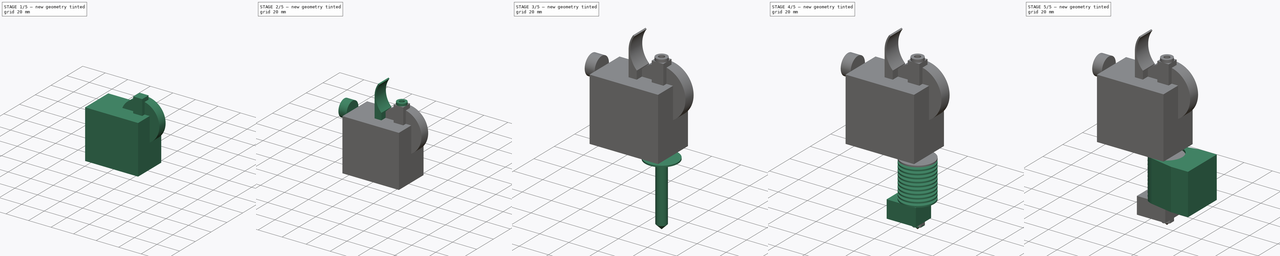
[diagram: build sequence overview — one tinted view per stage of 5, left to right]
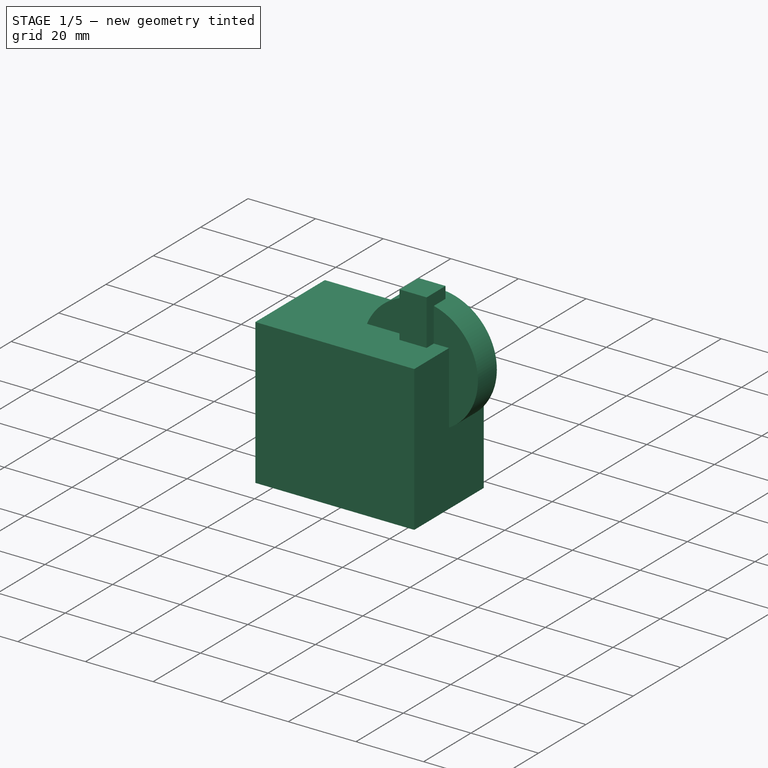
[diagram: stage 1 of 5 — iso view after this stage's code; geometry added in this stage tinted green]
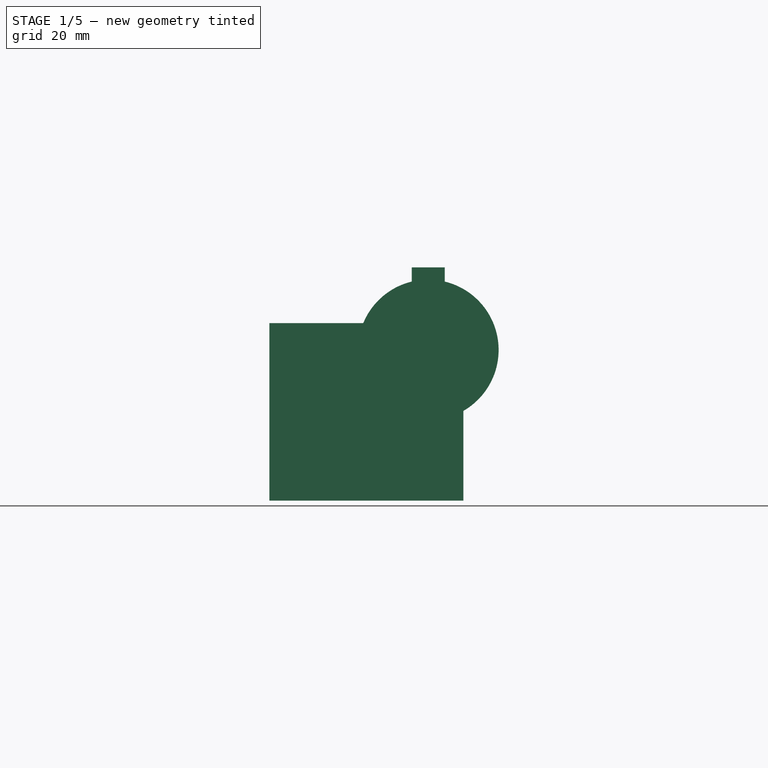
[diagram: stage 1 of 5 — front view after this stage's code; geometry added in this stage tinted green]
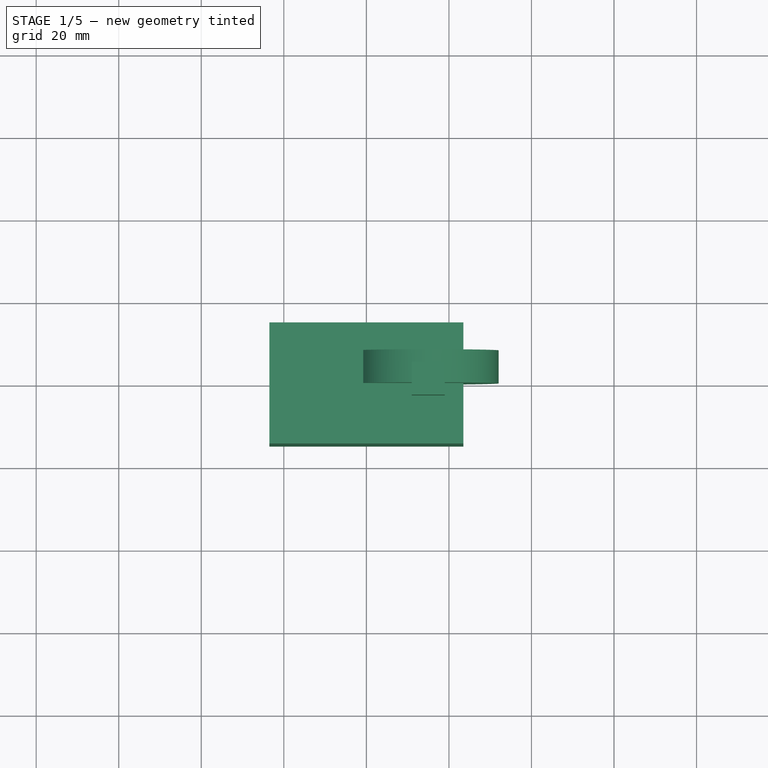
[diagram: stage 1 of 5 — top view after this stage's code; geometry added in this stage tinted green]
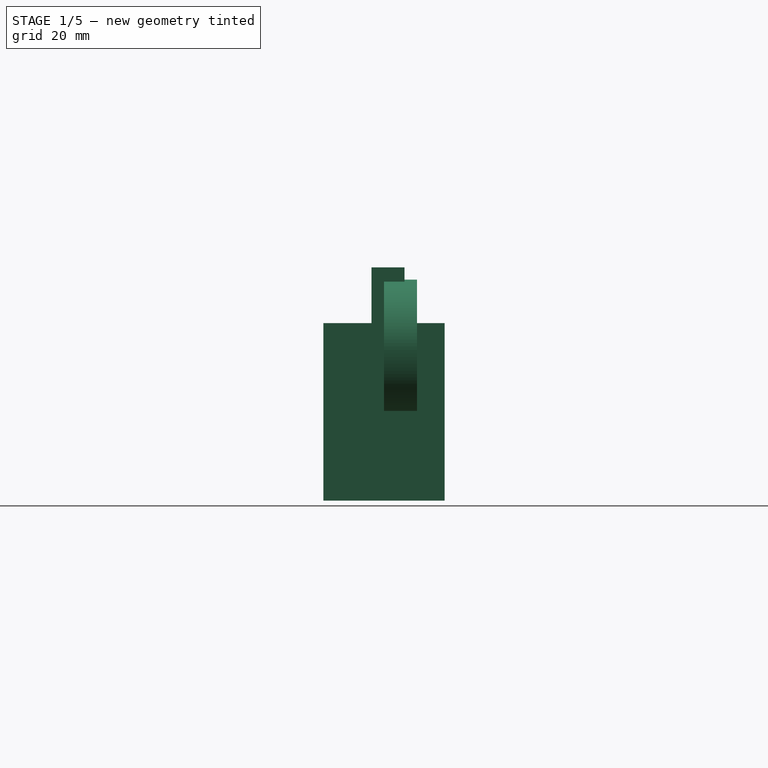
[diagram: stage 1 of 5 — right view after this stage's code; geometry added in this stage tinted green]
FCSTD DOCUMENT  (FreeCAD 0.19R)
Label: extruder_head_gear
License: All rights reserved
LicenseURL: http://en.wikipedia.org/wiki/All_rights_reserved
objects: Sketcher::SketchObject×12, PartDesign::Pad×10, PartDesign::Plane×3, PartDesign::CoordinateSystem×2, PartDesign::Chamfer×1, PartDesign::Line×1, PartDesign::Revolution×1, PartDesign::LinearPattern×1, PartDesign::Pocket×1, PartDesign::Mirrored×1, PartDesign::Body×1
note: 47 computed .brp shape members not serialized (recipe doc carries the construction recipe); baked Part::Feature solids carry a one-line shape summary decoded from their .brp

FEATURE [Sketcher::SketchObject] Sketch
  FullyConstrained = true
  MapMode = 5
  Placement = pos=(0,0,0) rot=(1,0,0;1.5708rad)
  Support = -> [XZ_Plane]
  sketch-geometry (4):
    g0: LineSegment StartX=-23.5 StartY=21.5 StartZ=0 EndX=23.5 EndY=21.5 EndZ=0
    g1: LineSegment StartX=23.5 StartY=21.5 StartZ=0 EndX=23.5 EndY=-21.5 EndZ=0
    g2: LineSegment StartX=23.5 StartY=-21.5 StartZ=0 EndX=-23.5 EndY=-21.5 EndZ=0
    g3: LineSegment StartX=-23.5 StartY=-21.5 StartZ=0 EndX=-23.5 EndY=21.5 EndZ=0
  constraints (11):
    c: Coincident(g0,g1)
    c: Coincident(g1,g2)
    c: Coincident(g2,g3)
    c: Coincident(g3,g0)
    c: Horizontal(g0)
    c: Horizontal(g2)
    c: Vertical(g1)
    c: Vertical(g3)
    c: Symmetric(g0,g2,g-1)
    c: DistanceX(g0,g0) = 47
    c: DistanceY(g1,g1) = 43
FEATURE [PartDesign::Pad] Pad
  Direction = (1,1,1)
  Length = 29.3624
  Length2 = 100
  Midplane = true
  Placement = pos=(0,0,0) rot=(1,0,0;1.5708rad)
  Profile = -> Sketch
  Refine = true
  Type = 0
FEATURE [Sketcher::SketchObject] Sketch001
  FullyConstrained = true
  MapMode = 5
  Placement = pos=(0,0,0) rot=(1,0,0;1.5708rad)
  Support = -> [XZ_Plane]
  sketch-geometry (1):
    g0: Circle CenterX=15 CenterY=15 CenterZ=0 NormalX=0 NormalY=0 NormalZ=1 AngleXU=0 Radius=17.0434
  constraints (3):
    c: Diameter(g0) = 34.0868
    c: DistanceX(g-1,g0) = 15
    c: DistanceY(g-1,g0) = 15
FEATURE [PartDesign::Pad] Pad001
  BaseFeature = -> Pad
  Direction = (1,1,1)
  Length = 8
  Length2 = -20
  Placement = pos=(0,0,0) rot=(1,0,0;1.5708rad)
  Profile = -> Sketch001
  Refine = true
  Reversed = true
  Type = 0
FEATURE [Sketcher::SketchObject] Sketch002
  ExternalGeometry = -> [Pad001]
  FullyConstrained = true
  MapMode = 5
  Support = -> [XY_Plane]
  expr: Constraints[14] = 0.54in
  sketch-geometry (5):
    g0: LineSegment StartX=11 StartY=4.9652 StartZ=0 EndX=19 EndY=4.9652 EndZ=0
    g1: LineSegment StartX=19 StartY=4.9652 StartZ=0 EndX=19 EndY=-3.0348 EndZ=0
    g2: LineSegment StartX=19 StartY=-3.0348 StartZ=0 EndX=11 EndY=-3.0348 EndZ=0
    g3: LineSegment StartX=11 StartY=-3.0348 StartZ=0 EndX=11 EndY=4.9652 EndZ=0
    g4: Circle CenterX=15 CenterY=0.9652 CenterZ=0 NormalX=0 NormalY=0 NormalZ=1 AngleXU=0 Radius=4
  constraints (15):
    c: Coincident(g0,g1)
    c: Coincident(g1,g2)
    c: Coincident(g2,g3)
    c: Coincident(g3,g0)
    c: Horizontal(g0)
    c: Horizontal(g2)
    c: Vertical(g1)
    c: Vertical(g3)
    c: Equal(g1,g0)
    c: DistanceY(g1,g1) = 8
    c: Tangent(g4,g0)
    c: Tangent(g4,g3)
    c: Tangent(g4,g1)
    c: DistanceX(g-1,g4) = 15
    c: DistanceY(g4,g-3) = 13.716
FEATURE [PartDesign::Pad] Pad002
  BaseFeature = -> Pad001
  Direction = (1,1,1)
  Length = 35
  Length2 = 100
  Placement = pos=(0,0,0) rot=(1,0,0;1.5708rad)
  Profile = -> Sketch002
  Refine = true
  Type = 0
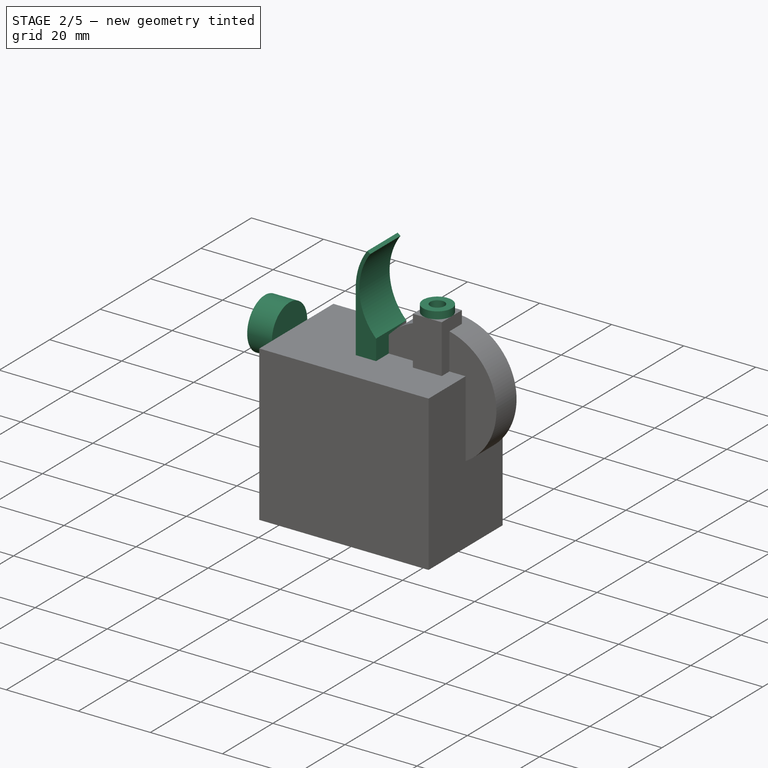
[diagram: stage 2 of 5 — iso view after this stage's code; geometry added in this stage tinted green]
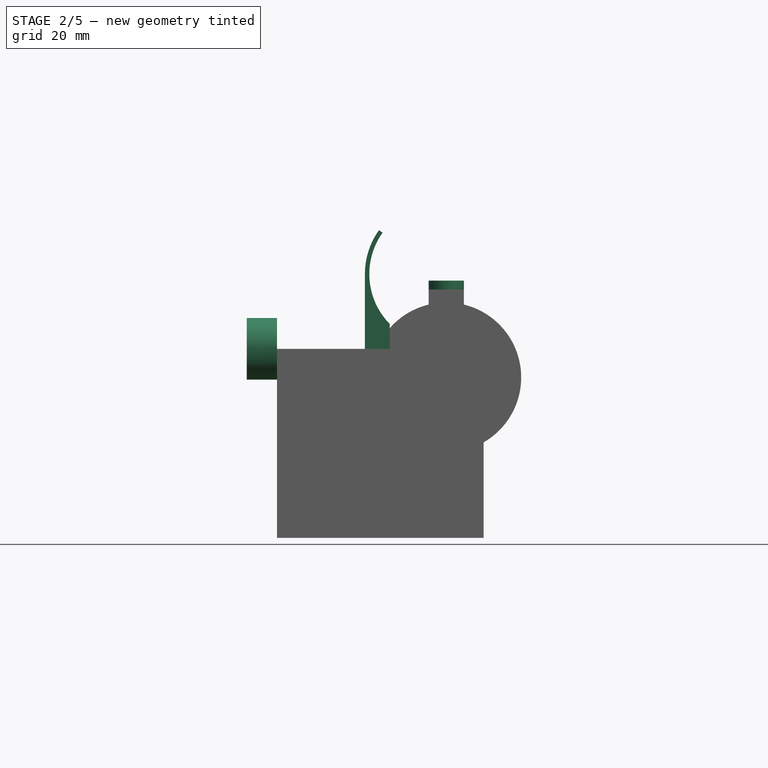
[diagram: stage 2 of 5 — front view after this stage's code; geometry added in this stage tinted green]
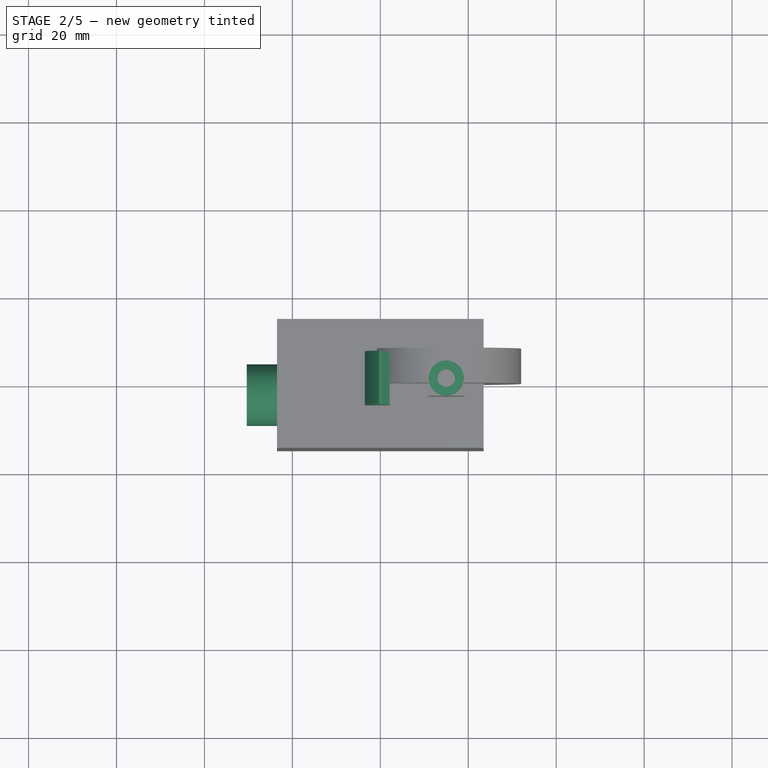
[diagram: stage 2 of 5 — top view after this stage's code; geometry added in this stage tinted green]
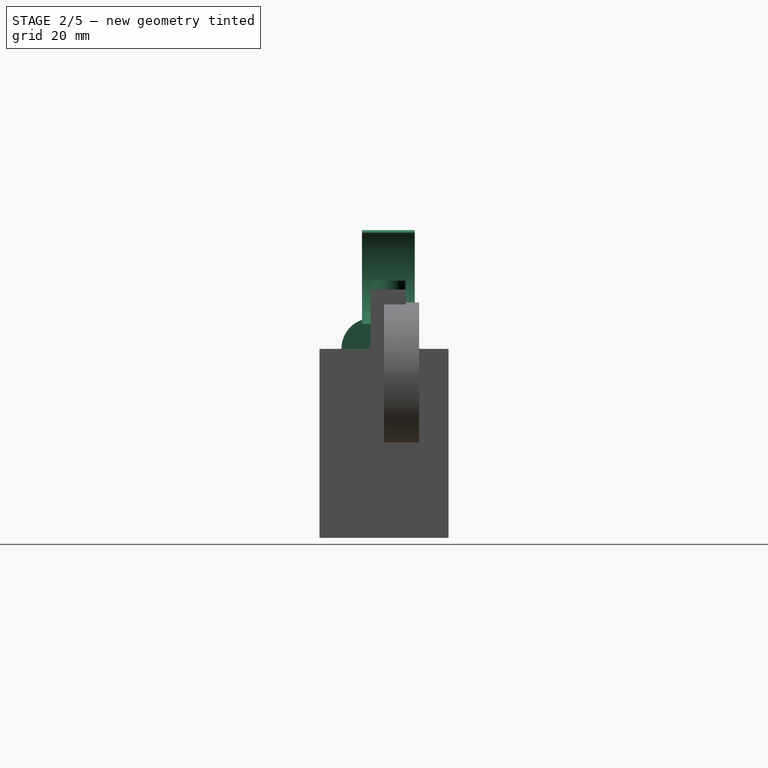
[diagram: stage 2 of 5 — right view after this stage's code; geometry added in this stage tinted green]
FEATURE [Sketcher::SketchObject] Sketch003
  ExternalGeometry = -> [Pad002]
  FullyConstrained = true
  MapMode = 5
  Placement = pos=(0,0,35) rot=(0,0,1;3.14159rad)
  Support = -> [Pad002]
  expr: Constraints[4] = 4
  sketch-geometry (2):
    g0: Circle CenterX=-15 CenterY=-0.9652 CenterZ=0 NormalX=0 NormalY=0 NormalZ=1 AngleXU=0 Radius=4
    g1: Circle CenterX=-15 CenterY=-0.9652 CenterZ=0 NormalX=0 NormalY=0 NormalZ=1 AngleXU=0 Radius=2
  constraints (5):
    c: Tangent(g0,g-5)
    c: Tangent(g0,g-3)
    c: Tangent(g0,g-4)
    c: Coincident(g1,g0)
    c: Diameter(g1) = 4
FEATURE [PartDesign::Pad] Pad003
  BaseFeature = -> Pad002
  Direction = (1,1,1)
  Length = 2
  Length2 = 100
  Placement = pos=(0,0,0) rot=(1,0,0;1.5708rad)
  Profile = -> Sketch003
  Refine = true
  Type = 0
FEATURE [Sketcher::SketchObject] Sketch004
  ExternalGeometry = -> [Pad003]
  FullyConstrained = true
  MapMode = 5
  Placement = pos=(-23.5,0,0) rot=(0.707107,0,-0.707107;3.14159rad)
  Support = -> [Pad003]
  sketch-geometry (1):
    g0: Circle CenterX=-21.5 CenterY=2.6812 CenterZ=0 NormalX=0 NormalY=0 NormalZ=1 AngleXU=0 Radius=7
  constraints (3):
    c: Diameter(g0) = 14
    c: DistanceY(g0,g-3) = 12
    c: Vertical(g-3,g0)
FEATURE [PartDesign::Pad] Pad004
  BaseFeature = -> Pad003
  Direction = (1,1,1)
  Length = 6.858
  Length2 = 100
  Placement = pos=(0,0,0) rot=(1,0,0;1.5708rad)
  Profile = -> Sketch004
  Refine = true
  Type = 0
  expr: Length = 0.27in
FEATURE [Sketcher::SketchObject] Sketch005
  ExternalGeometry = -> [Pad004]
  FullyConstrained = true
  MapMode = 5
  Placement = pos=(0,0,0) rot=(1,0,0;1.5708rad)
  Support = -> [XZ_Plane]
  sketch-geometry (6):
    g0: ArcOfCircle CenterX=13.6649 CenterY=38.5038 CenterZ=0 NormalX=0 NormalY=0 NormalZ=1 AngleXU=0 Radius=16.1649 StartAngle=2.51996 EndAngle=3.91947
    g1: ArcOfCircle CenterX=13.6649 CenterY=38.5038 CenterZ=0 NormalX=0 NormalY=0 NormalZ=1 AngleXU=0 Radius=17.1649 StartAngle=2.51996 EndAngle=3.14159
    g2: LineSegment StartX=-3.5 StartY=38.5038 StartZ=0 EndX=-3.5 EndY=21.5 EndZ=0
    g3: LineSegment StartX=-0.288926 StartY=48.5 StartZ=0 EndX=0.524002 EndY=47.9176 EndZ=0
    g4: LineSegment StartX=-3.5 StartY=21.5 StartZ=0 EndX=2.1489 EndY=21.5 EndZ=0
    g5: LineSegment StartX=2.1489 StartY=27.1598 StartZ=0 EndX=2.1489 EndY=21.5 EndZ=0
  constraints (19):
    c: Coincident(g1,g0)
    c: Coincident(g2,g1)
    c: Tangent(g1,g2)
    c: Vertical(g2)
    c: Coincident(g3,g1)
    c: Coincident(g3,g0)
    c: Coincident(g4,g2)
    c: Distance(g3) = 1
    c: PointOnObject(g0,g3)
    c: Horizontal(g4)
    c: DistanceX(g-3,g2) = 20
    c: DistanceY(g-3,g1) = 27
    c: Vertical(g5)
    c: Coincident(g0,g5)
    c: Coincident(g4,g5)
    c: DistanceX(g4,g4) = 5.6489
    c: Radius(g0) = 16.1649
    c: DistanceY(g5,g5) = 5.6598
    c: Horizontal(g4,g-3)
FEATURE [PartDesign::Pad] Pad005
  BaseFeature = -> Pad004
  Direction = (1,1,1)
  Length = 5
  Length2 = 7
  Placement = pos=(0,0,0) rot=(1,0,0;1.5708rad)
  Profile = -> Sketch005
  Refine = true
  Type = 4
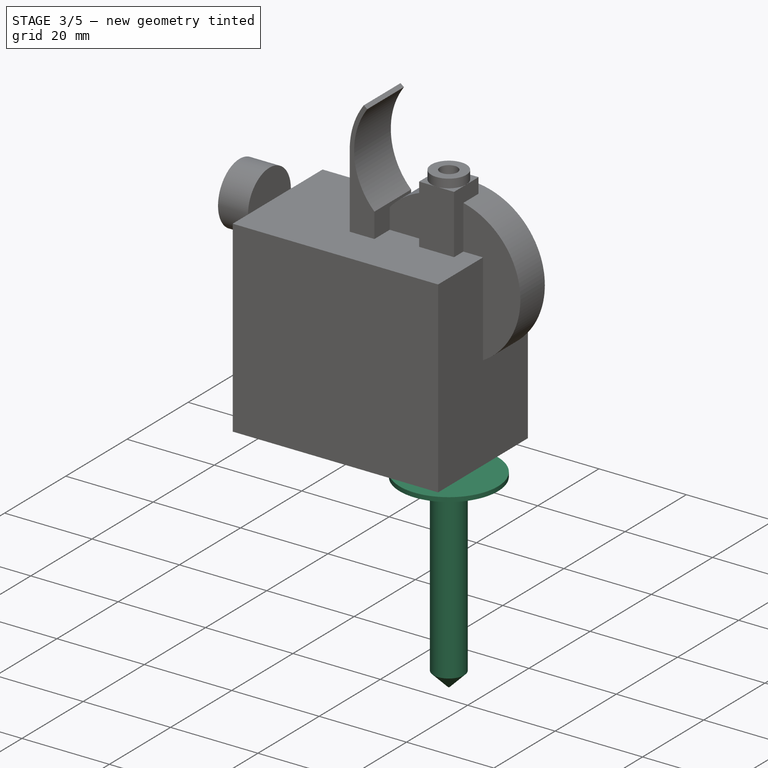
[diagram: stage 3 of 5 — iso view after this stage's code; geometry added in this stage tinted green]
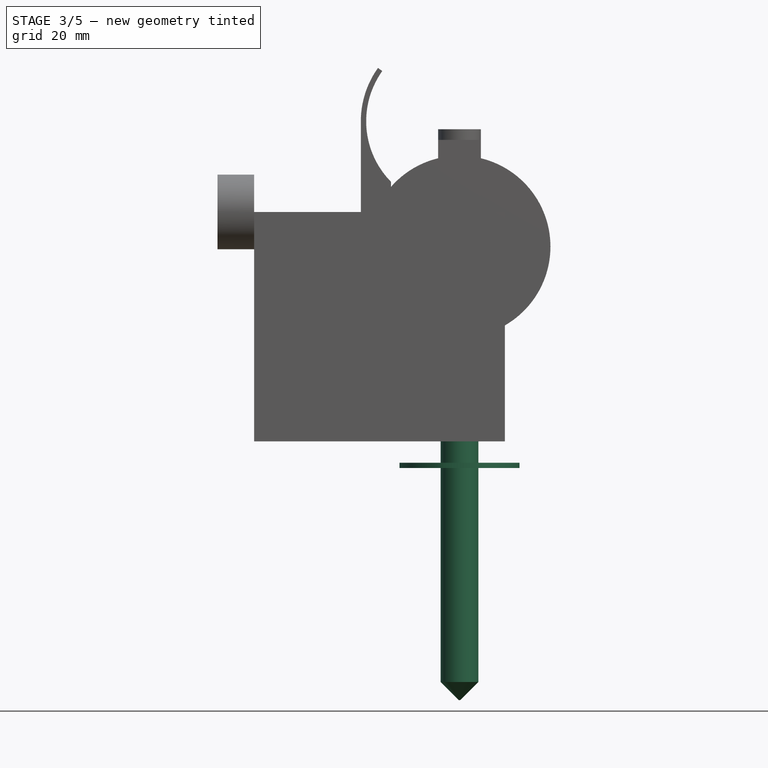
[diagram: stage 3 of 5 — front view after this stage's code; geometry added in this stage tinted green]
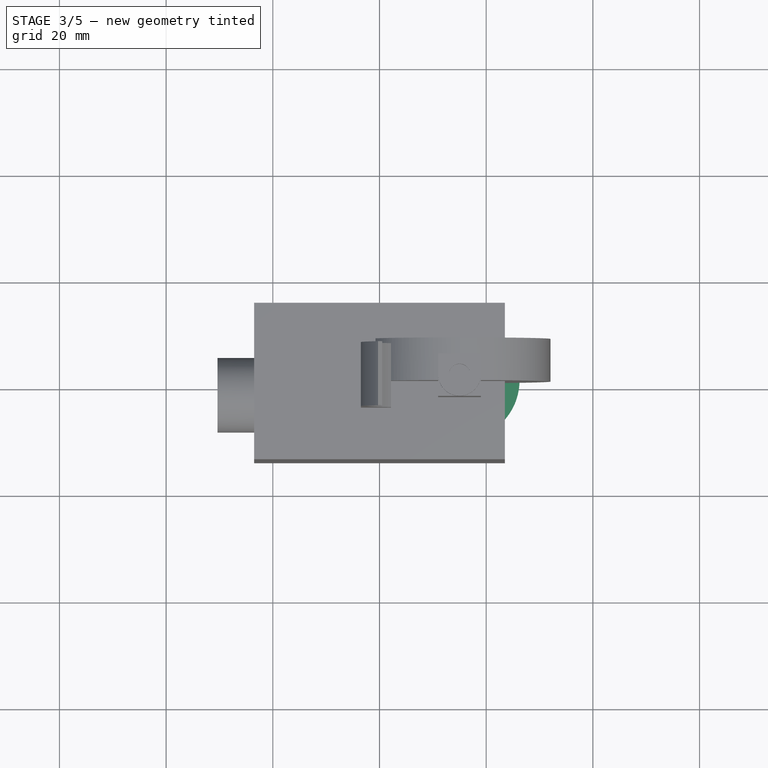
[diagram: stage 3 of 5 — top view after this stage's code; geometry added in this stage tinted green]
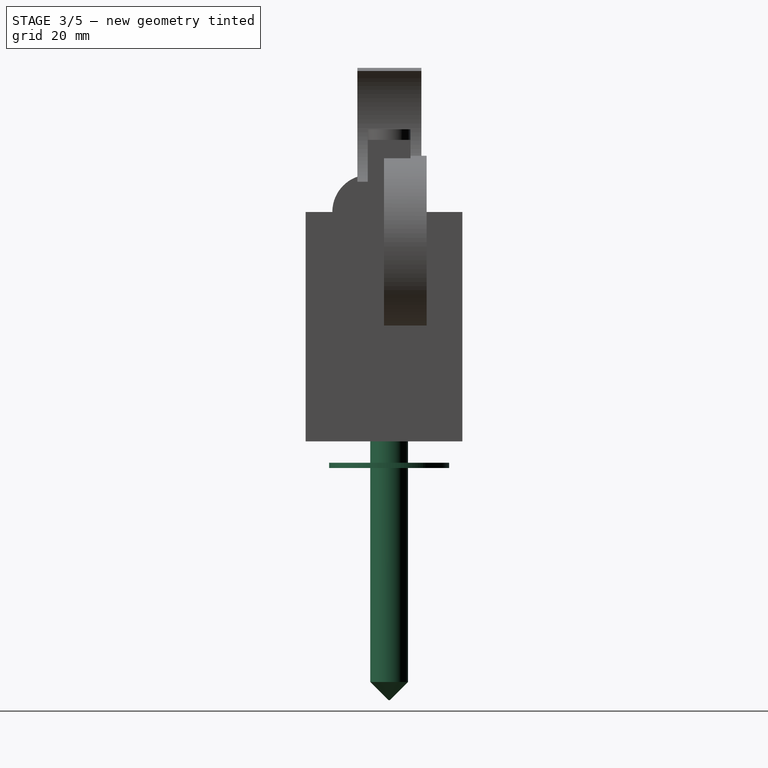
[diagram: stage 3 of 5 — right view after this stage's code; geometry added in this stage tinted green]
FEATURE [Sketcher::SketchObject] Sketch006
  ExternalGeometry = -> [Pad005]
  FullyConstrained = true
  MapMode = 5
  Support = -> [XY_Plane]
  sketch-geometry (1):
    g0: Circle CenterX=15 CenterY=0.9652 CenterZ=0 NormalX=0 NormalY=0 NormalZ=1 AngleXU=0 Radius=3.5433
  constraints (2):
    c: Coincident(g-3,g0)
    c: Diameter(g0) = 7.0866
FEATURE [PartDesign::Pad] Pad006
  BaseFeature = -> Pad005
  Direction = (1,1,1)
  Length = 70
  Length2 = 100
  Placement = pos=(0,0,0) rot=(1,0,0;1.5708rad)
  Profile = -> Sketch006
  Refine = true
  Reversed = true
  Type = 0
FEATURE [PartDesign::Chamfer] Chamfer
  Angle = 45
  Base = -> Pad006 [Edge80]
  BaseFeature = -> Pad006
  ChamferType = 0
  FlipDirection = false
  Placement = pos=(0,0,0) rot=(1,0,0;1.5708rad)
  Refine = true
  Size = 3.4
  Size2 = 1
  SupportTransform = false
FEATURE [PartDesign::Line] DatumLine
  AttacherType = Attacher::AttachEngineLine
  Length = 20
  MapMode = 19
  Placement = pos=(15,0.9652,-66.6) rot=(0,0,1;0rad)
  ResizeMode = 0
  Support = -> [Chamfer]
FEATURE [PartDesign::Plane] DatumPlane
  Length = 63.5351
  MapMode = 3
  Placement = pos=(15,0.9652,-66.6) rot=(1,0,0;1.5708rad)
  ResizeMode = 0
  Support = -> [DatumLine]
  Width = 105.135
FEATURE [Sketcher::SketchObject] Sketch007
  ExternalGeometry = -> [Chamfer]
  FullyConstrained = true
  MapMode = 5
  Placement = pos=(15,0.9652,-66.6) rot=(1,0,0;1.5708rad)
  Support = -> [DatumPlane]
  expr: Constraints[9] = 22.5 / 2
  sketch-geometry (4):
    g0: LineSegment StartX=0 StartY=41.1 StartZ=0 EndX=11.25 EndY=41.1 EndZ=0
    g1: LineSegment StartX=11.25 StartY=41.1 StartZ=0 EndX=11.25 EndY=40.1 EndZ=0
    g2: LineSegment StartX=11.25 StartY=40.1 StartZ=0 EndX=0 EndY=40.1 EndZ=0
    g3: LineSegment StartX=0 StartY=40.1 StartZ=0 EndX=0 EndY=41.1 EndZ=0
  constraints (12):
    c: Coincident(g0,g1)
    c: Coincident(g1,g2)
    c: Coincident(g2,g3)
    c: Coincident(g3,g0)
    c: Horizontal(g0)
    c: Horizontal(g2)
    c: Vertical(g1)
    c: Vertical(g3)
    c: Vertical(g-1,g2)
    c: DistanceX(g-1,g1) = 11.25
    c: DistanceY(g1,g1) = 1
    c: DistanceY(g0,g-3) = 4
FEATURE [PartDesign::Revolution] Revolution
  Angle = 360
  Axis = (0,2e-16,1)
  Base = (15,0.9652,-66.6)
  BaseFeature = -> Chamfer
  Placement = pos=(0,0,0) rot=(1,0,0;1.5708rad)
  Profile = -> Sketch007
  ReferenceAxis = -> Sketch007 [V_Axis]
  Refine = true
  Reversed = true
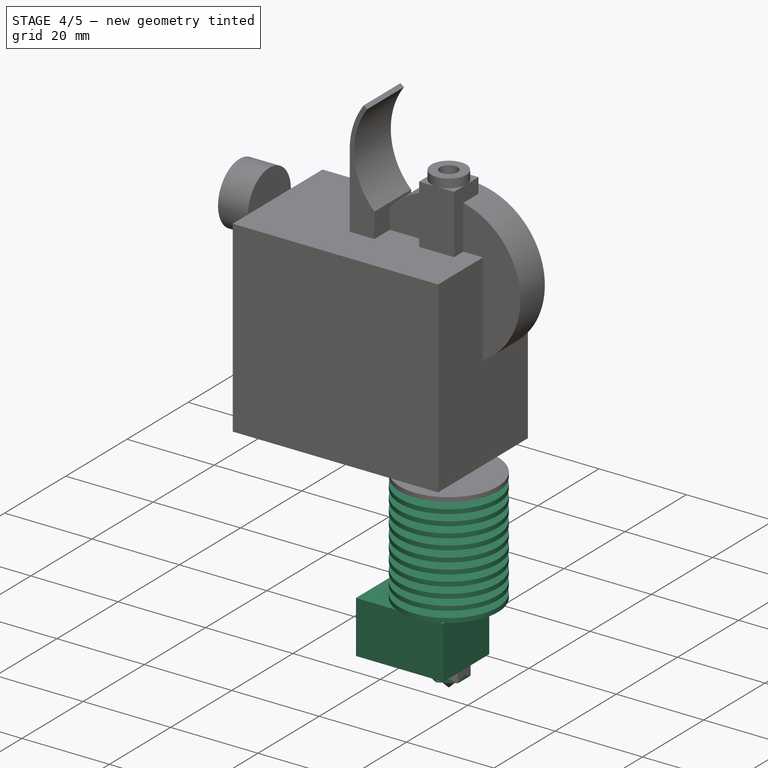
[diagram: stage 4 of 5 — iso view after this stage's code; geometry added in this stage tinted green]
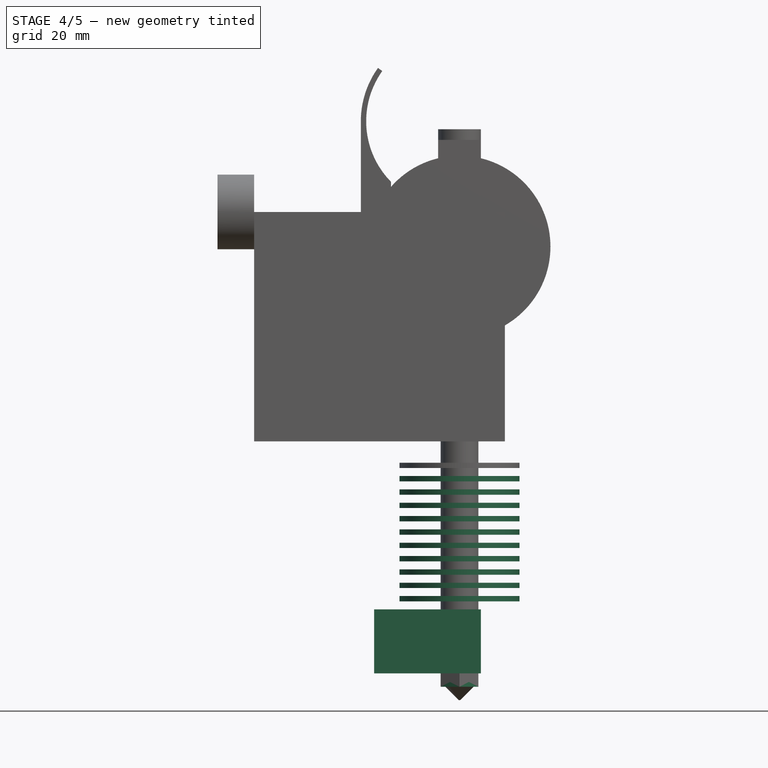
[diagram: stage 4 of 5 — front view after this stage's code; geometry added in this stage tinted green]
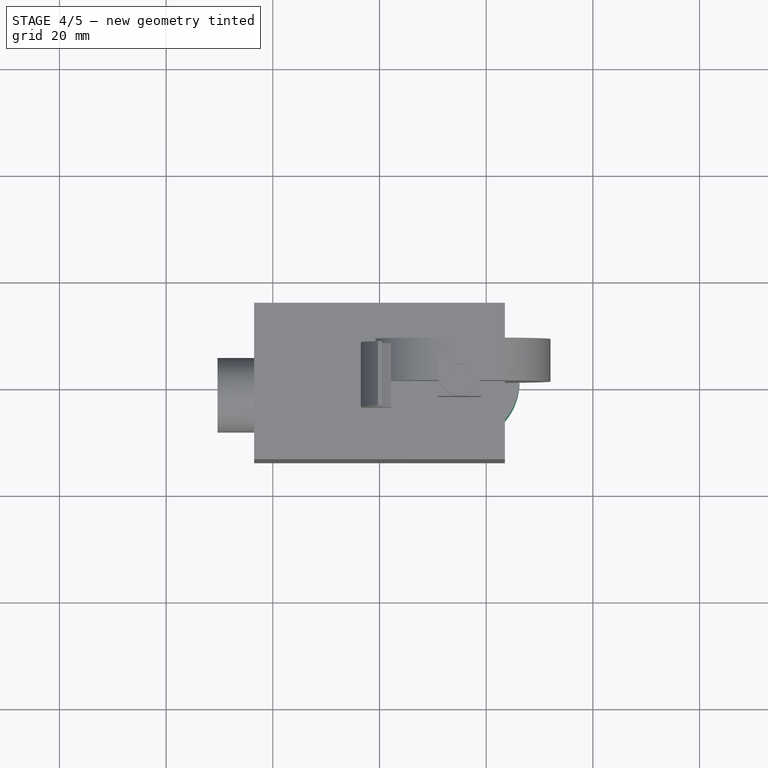
[diagram: stage 4 of 5 — top view after this stage's code; geometry added in this stage tinted green]
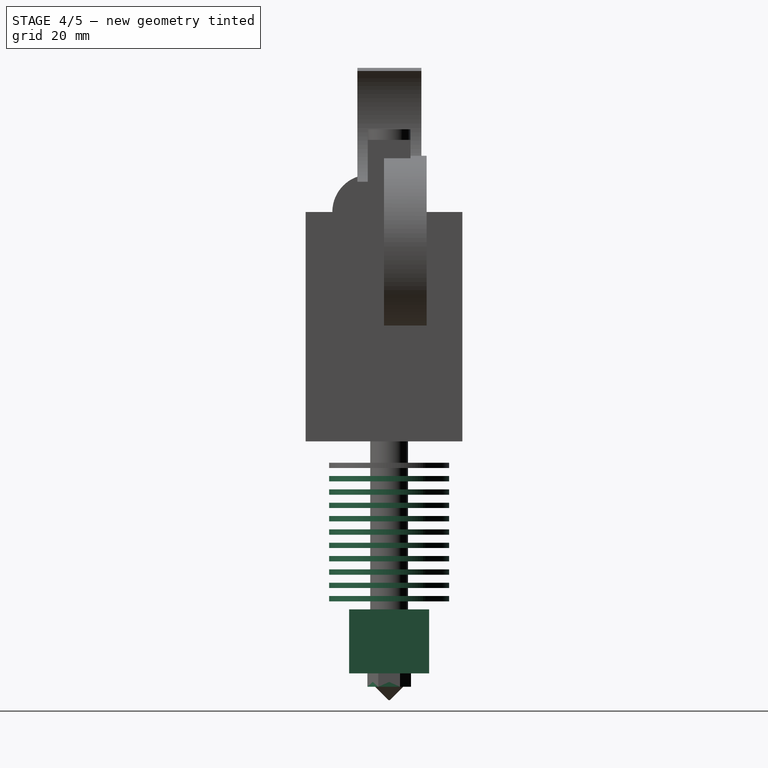
[diagram: stage 4 of 5 — right view after this stage's code; geometry added in this stage tinted green]
FEATURE [PartDesign::LinearPattern] LinearPattern
  BaseFeature = -> Revolution
  Direction = -> Z_Axis
  Length = 25
  Occurrences = 11
  Originals = -> [Revolution]
  Placement = pos=(0,0,0) rot=(1,0,0;1.5708rad)
  Refine = true
  Reversed = true
FEATURE [PartDesign::Plane] DatumPlane001
  AttachmentOffset = pos=(0,0,-53) rot=(0,0,1;0rad)
  Length = 60
  MapMode = 5
  Placement = pos=(0,0,-53) rot=(0,0,1;0rad)
  ResizeMode = 0
  Support = -> [XY_Plane]
  Width = 60
FEATURE [Sketcher::SketchObject] Sketch008
  ExternalGeometry = -> [LinearPattern]
  FullyConstrained = true
  MapMode = 5
  Placement = pos=(0,0,-53) rot=(0,0,1;0rad)
  Support = -> [DatumPlane001]
  sketch-geometry (4):
    g0: LineSegment StartX=-1 StartY=-6.5348 StartZ=0 EndX=19 EndY=-6.5348 EndZ=0
    g1: LineSegment StartX=19 StartY=-6.5348 StartZ=0 EndX=19 EndY=8.4652 EndZ=0
    g2: LineSegment StartX=19 StartY=8.4652 StartZ=0 EndX=-1 EndY=8.4652 EndZ=0
    g3: LineSegment StartX=-1 StartY=8.4652 StartZ=0 EndX=-1 EndY=-6.5348 EndZ=0
  constraints (12):
    c: Coincident(g0,g1)
    c: Coincident(g1,g2)
    c: Coincident(g2,g3)
    c: Coincident(g3,g0)
    c: Horizontal(g0)
    c: Horizontal(g2)
    c: Vertical(g1)
    c: Vertical(g3)
    c: DistanceX(g0,g0) = 20
    c: DistanceY(g1,g1) = 15
    c: DistanceY(g-3,g1) = 7.5
    c: DistanceX(g-3,g0) = 4
FEATURE [PartDesign::Pad] Pad007
  BaseFeature = -> LinearPattern
  Direction = (1,1,1)
  Length = 12
  Length2 = 100
  Placement = pos=(0,0,0) rot=(1,0,0;1.5708rad)
  Profile = -> Sketch008
  Refine = true
  Reversed = true
  Type = 0
FEATURE [Sketcher::SketchObject] Sketch009
  ExternalGeometry = -> [Pad007]
  FullyConstrained = true
  MapMode = 5
  Placement = pos=(0,0,-65) rot=(1,0,0;3.14159rad)
  Support = -> [Pad007]
  sketch-geometry (7):
    g0: LineSegment StartX=18.5433 StartY=1.08053 StartZ=0 EndX=15 EndY=3.12625 EndZ=0
    g1: LineSegment StartX=15 StartY=3.12625 StartZ=0 EndX=11.4567 EndY=1.08053 EndZ=0
    g2: LineSegment StartX=11.4567 StartY=1.08053 StartZ=0 EndX=11.4567 EndY=-3.01093 EndZ=0
    g3: LineSegment StartX=11.4567 StartY=-3.01093 StartZ=0 EndX=15 EndY=-5.05665 EndZ=0
    g4: LineSegment StartX=15 StartY=-5.05665 StartZ=0 EndX=18.5433 EndY=-3.01093 EndZ=0
    g5: LineSegment StartX=18.5433 StartY=-3.01093 StartZ=0 EndX=18.5433 EndY=1.08053 EndZ=0
    g6: Circle CenterX=15 CenterY=-0.9652 CenterZ=0 NormalX=0 NormalY=0 NormalZ=1 AngleXU=0 Radius=4.09145
  constraints (16):
    c: Coincident(g0,g1)
    c: Coincident(g1,g2)
    c: Coincident(g2,g3)
    c: Coincident(g3,g4)
    c: Coincident(g4,g5)
    c: Coincident(g5,g0)
    c: Equal(g0, g1-g5) x5
    c: PointOnObject(g0,g6)
    c: PointOnObject(g1,g6)
    c: PointOnObject(g2,g6)
    c: PointOnObject(g3,g6)
    c: PointOnObject(g4,g6)
    c: PointOnObject(g5,g6)
    c: Vertical(g5)
    c: Coincident(g6,g-3)
    c: Tangent(g-3,g2)
FEATURE [PartDesign::Pad] Pad008
  BaseFeature = -> Pad007
  Direction = (1,1,1)
  Length = 2.5
  Length2 = 100
  Placement = pos=(0,0,0) rot=(1,0,0;1.5708rad)
  Profile = -> Sketch009
  Refine = true
  Type = 0
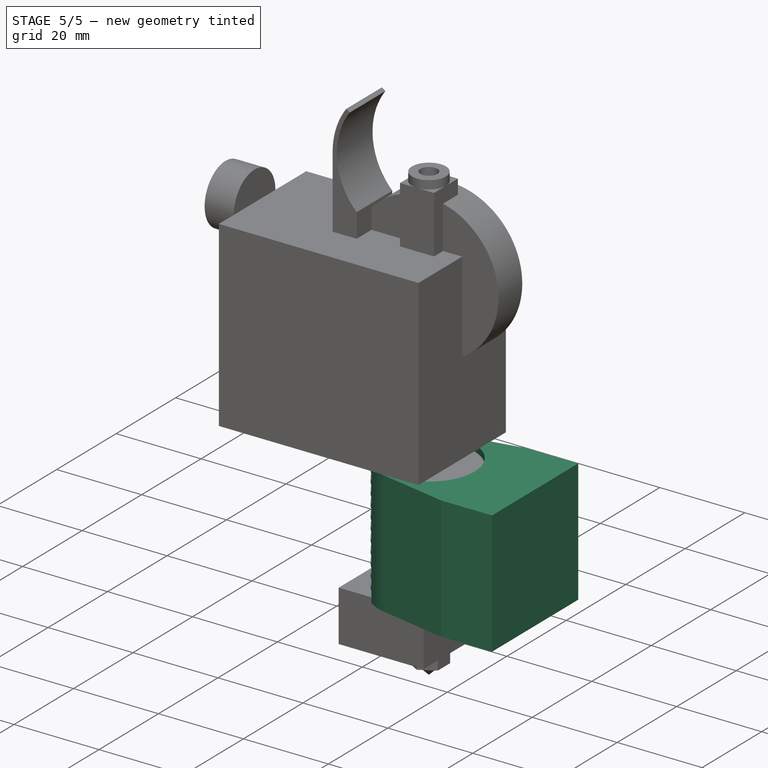
[diagram: stage 5 of 5 — iso view after this stage's code; geometry added in this stage tinted green]
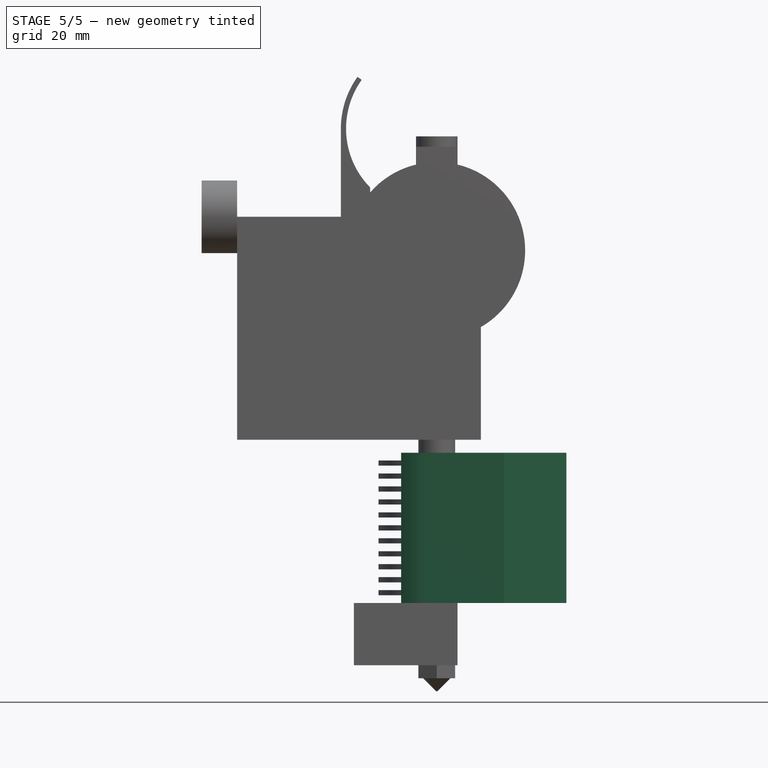
[diagram: stage 5 of 5 — front view after this stage's code; geometry added in this stage tinted green]
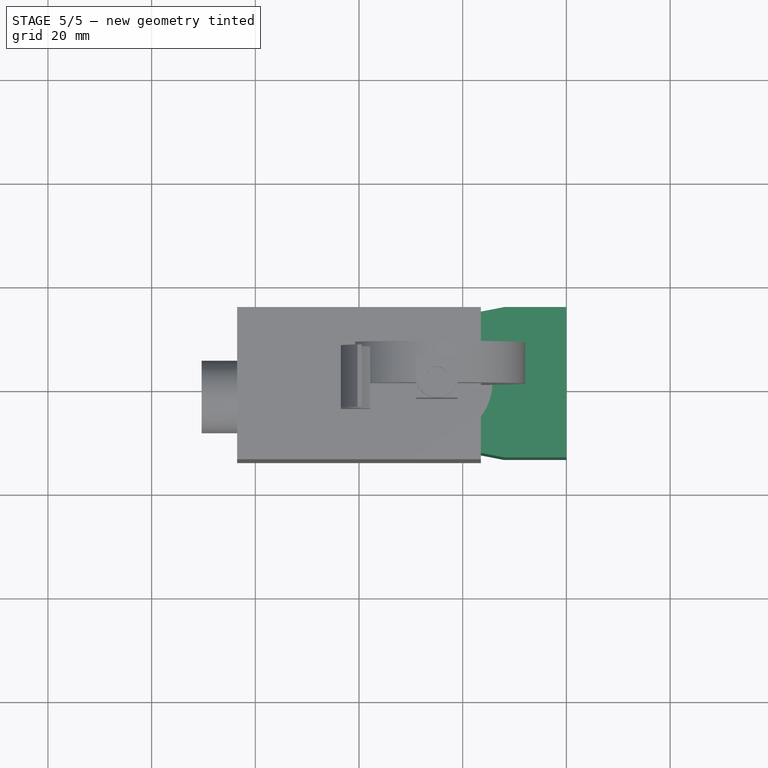
[diagram: stage 5 of 5 — top view after this stage's code; geometry added in this stage tinted green]
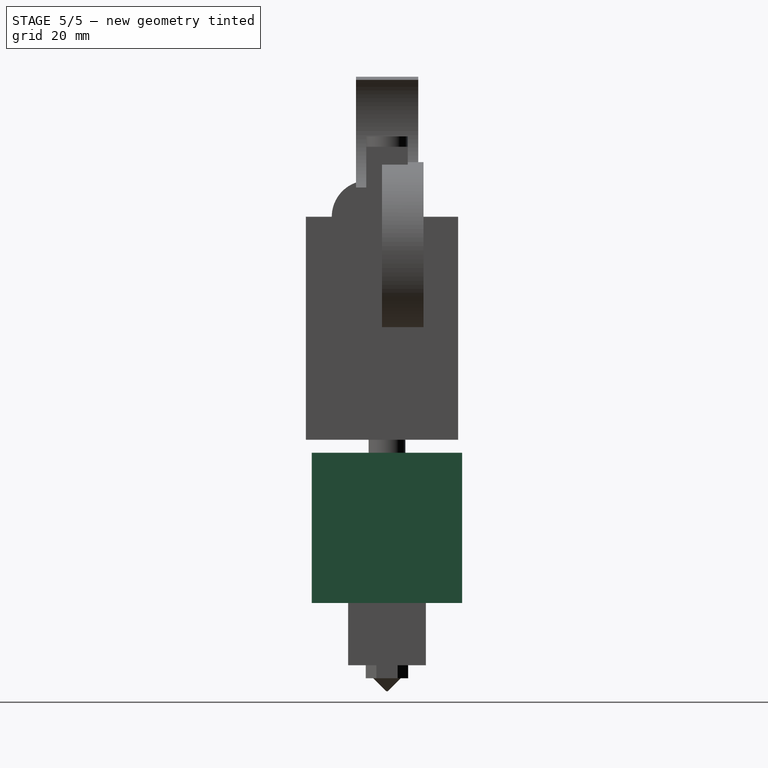
[diagram: stage 5 of 5 — right view after this stage's code; geometry added in this stage tinted green]
FEATURE [Sketcher::SketchObject] Sketch010
  FullyConstrained = true
  MapMode = 5
  Placement = pos=(0,0,0) rot=(1,0,0;1.5708rad)
  Support = -> [XZ_Plane]
  sketch-geometry (1):
    g0: Circle CenterX=0 CenterY=0 CenterZ=0 NormalX=0 NormalY=0 NormalZ=1 AngleXU=0 Radius=1
  constraints (2):
    c: Diameter(g0) = 2
    c: Coincident(g0,g-1)
FEATURE [PartDesign::Pocket] Pocket
  BaseFeature = -> Pad008
  Length = 5
  Length2 = 100
  Placement = pos=(0,0,0) rot=(1,0,0;1.5708rad)
  Profile = -> Sketch010
  Refine = true
  Type = 1
FEATURE [PartDesign::Plane] DatumPlane002
  AttachmentOffset = pos=(0,0,-24) rot=(0,0,1;0rad)
  Length = 60
  MapMode = 2
  Placement = pos=(0,0,-24) rot=(0,0,1;0rad)
  ResizeMode = 0
  Support = -> [XY_Plane]
  Width = 60
FEATURE [Sketcher::SketchObject] Sketch011
  ExternalGeometry = -> [Pocket]
  FullyConstrained = true
  MapMode = 5
  Placement = pos=(0,0,-24) rot=(0,0,1;0rad)
  Support = -> [DatumPlane002]
  sketch-geometry (7):
    g0: ArcOfCircle CenterX=15 CenterY=0.9652 CenterZ=0 NormalX=0 NormalY=0 NormalZ=1 AngleXU=0 Radius=10.75 StartAngle=0 EndAngle=2.19655
    g1: LineSegment StartX=8.70366 StartY=9.67833 StartZ=0 EndX=8.11795 EndY=10.4888 EndZ=0
    g2: ArcOfCircle CenterX=15 CenterY=0.9652 CenterZ=0 NormalX=0 NormalY=0 NormalZ=1 AngleXU=0 Radius=11.75 StartAngle=1.76298 EndAngle=2.19655
    g3: LineSegment StartX=25.75 StartY=0.9652 StartZ=0 EndX=40 EndY=0.9652 EndZ=0
    g4: LineSegment StartX=12.7557 StartY=12.4989 StartZ=0 EndX=28 EndY=15.4652 EndZ=0
    g5: LineSegment StartX=28 StartY=15.4652 StartZ=0 EndX=40 EndY=15.4652 EndZ=0
    g6: LineSegment StartX=40 StartY=15.4652 StartZ=0 EndX=40 EndY=0.9652 EndZ=0
  constraints (20):
    c: Coincident(g-3,g0)
    c: Radius(g0) = 10.75
    c: Coincident(g1,g0)
    c: PointOnObject(g0,g1)
    c: Coincident(g2,g0)
    c: Coincident(g2,g1)
    c: Distance(g1) = 1
    c: Coincident(g0,g3)
    c: PointOnObject(g0,g3)
    c: Horizontal(g3)
    c: Angle(g3,g1) = 2.19655
    c: Coincident(g5,g4)
    c: Horizontal(g5)
    c: Coincident(g6,g5)
    c: Vertical(g6)
    c: Tangent(g2,g4) = 1.5708
    c: Coincident(g6,g3)
    c: DistanceX(g0,g3) = 25
    c: DistanceX(g0,g4) = 13
    c: DistanceY(g6,g6) = 14.5
FEATURE [PartDesign::Pad] Pad009
  BaseFeature = -> Pocket
  Direction = (1,1,1)
  Length = 29
  Length2 = 100
  Placement = pos=(0,0,0) rot=(1,0,0;1.5708rad)
  Profile = -> Sketch011
  Refine = true
  Reversed = true
  Type = 0
FEATURE [PartDesign::Mirrored] Mirrored  label="Extruder"
  BaseFeature = -> Pad009
  MirrorPlane = -> DatumPlane
  Originals = -> [Pad009]
  Placement = pos=(0,0,0) rot=(1,0,0;1.5708rad)
FEATURE [PartDesign::CoordinateSystem] Local_CS001  label="Local_tip"
  AttacherType = Attacher::AttachEngine3D
  AttachmentOffset = pos=(0,0,0) rot=(0,0,-1;1.5708rad)
  MapMode = 11
  Placement = pos=(15,0.9652,-70) rot=(0,0,1;0rad)
  Support = -> [Mirrored]
FEATURE [PartDesign::CoordinateSystem] Local_CS  label="motor_bracket"
  AttacherType = Attacher::AttachEngine3D
  MapMode = 11
  Placement = pos=(0,14.6812,4.9e-15) rot=(0.57735,-0.57735,0.57735;2.0944rad)
  Support = -> [Mirrored]
FEATURE [PartDesign::Body] Body
  Group = -> [Sketch,Pad,Sketch001,Pad001,Sketch002,Pad002,Sketch003,Pad003,Sketch004,Pad004,Sketch005,Pad005,Sketch006,Pad006,Chamfer,DatumLine,DatumPlane,Sketch007,Revolution,LinearPattern,DatumPlane001,Sketch008,Pad007,Sketch009,Pad008,Sketch010,Pocket,DatumPlane002,Sketch011,Pad009,Mirrored,Local_CS001,Local_CS]
  Origin = -> Origin
  Tip = -> Mirrored
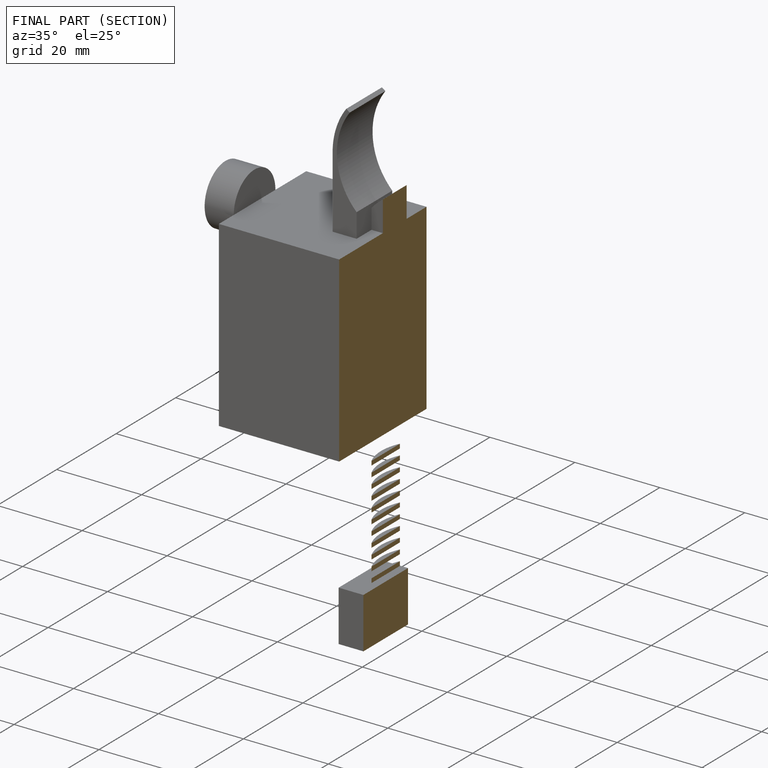
[diagram: finished part — half-section view (interior)]
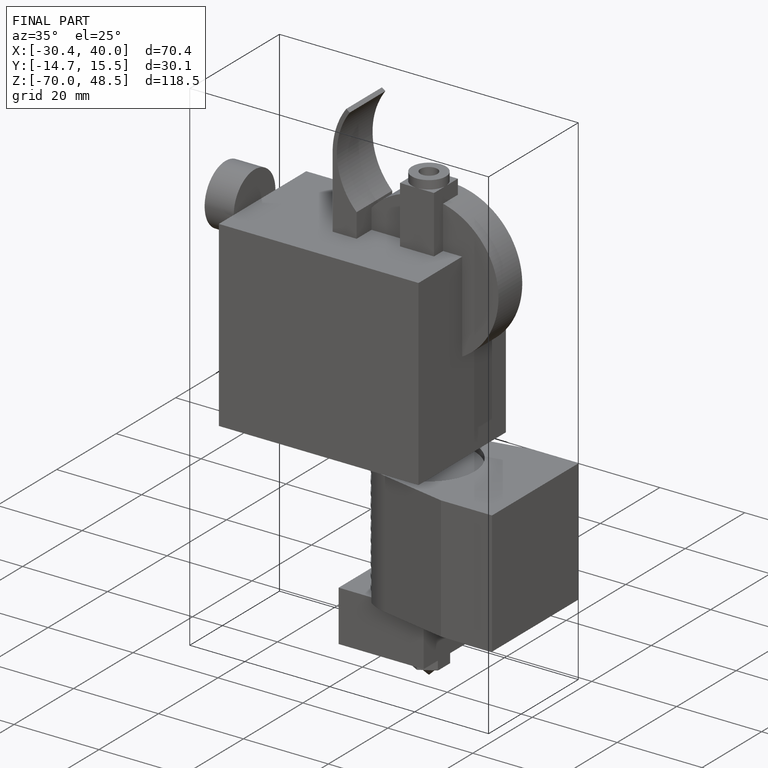
[diagram: finished part — iso view with bounding-box wireframe]
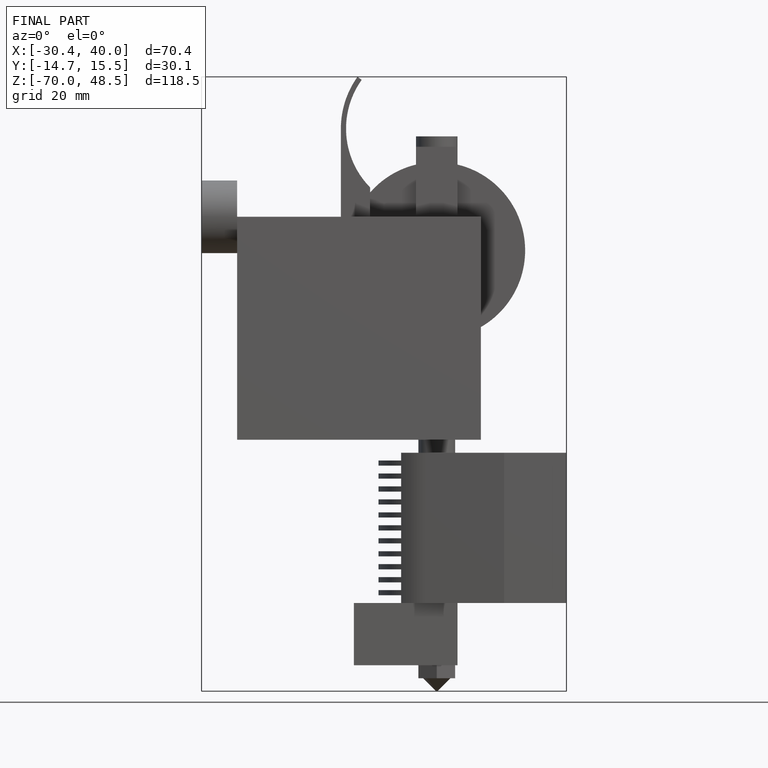
[diagram: finished part — front view with bounding-box wireframe]
